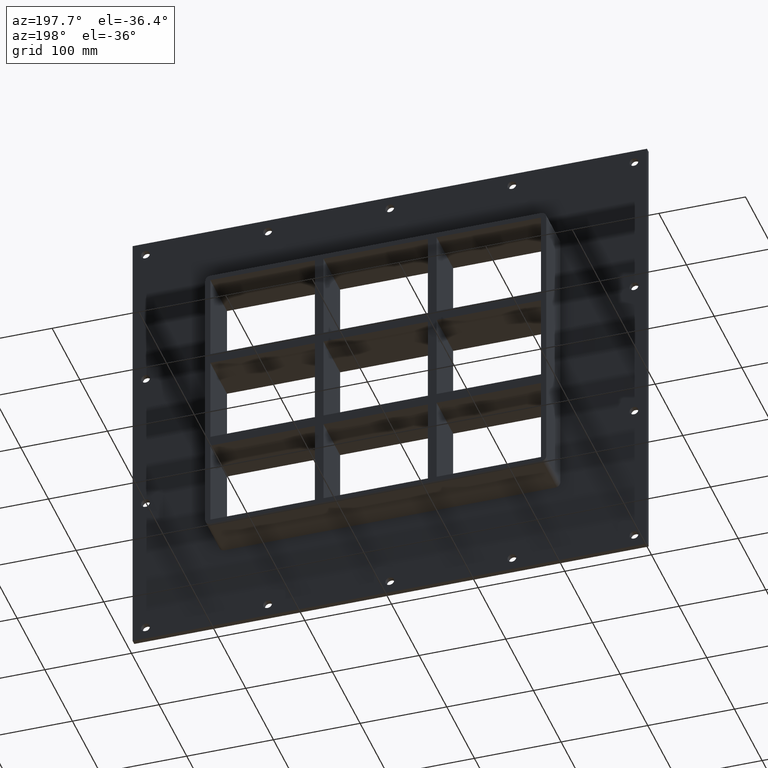
[diagram: clean part render]
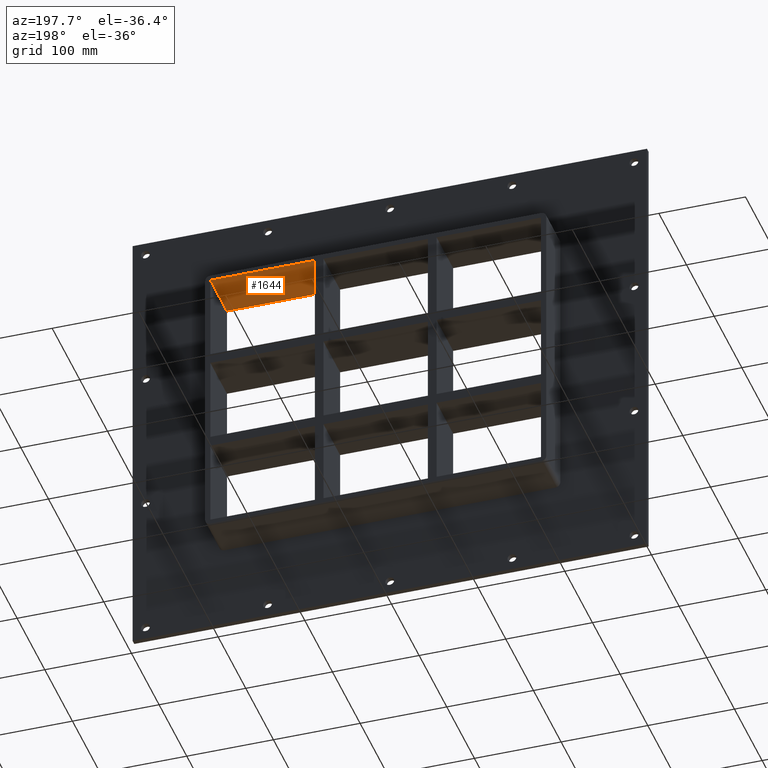
[diagram: same view with one face highlighted and labeled with its STEP entity id]
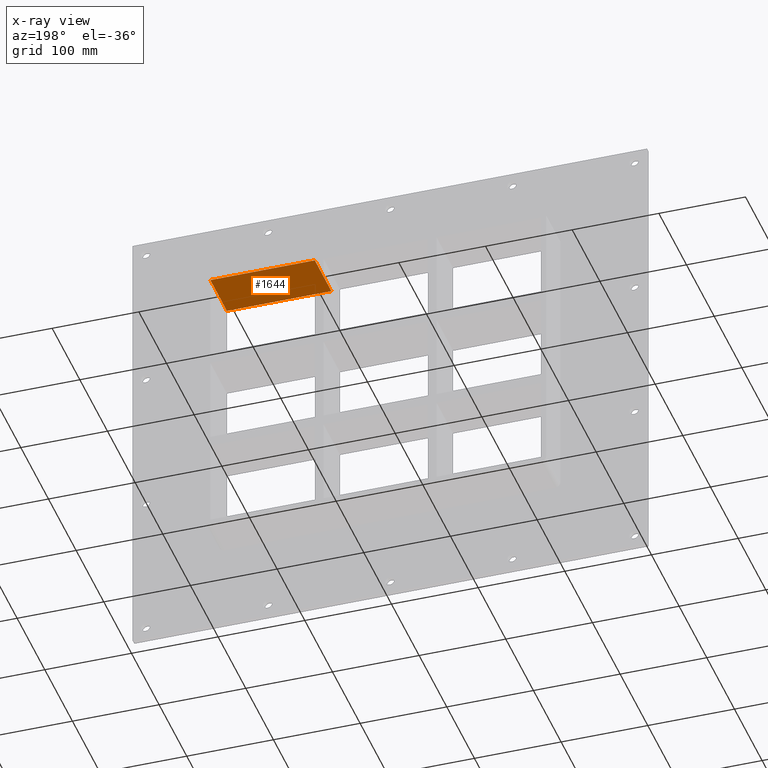
[diagram: x-ray of the same camera — body ghosted, the highlighted face saturated]
A machine part, auxiliary view. The second image highlights one B-rep face of the part: STEP entity #1644.
The next image is the same camera in x-ray: the body ghosted, the highlighted face saturated — about 0% of this face is hidden behind the body in this view.
In plain terms, the highlighted planar face has unit normal (0, 0, 1).
Its self-contained STEP definition (entity closure, byte-faithful):
#768=CARTESIAN_POINT('',(190.75000000000006,-3.0,163.5));
#769=VERTEX_POINT('',#768);
#776=CARTESIAN_POINT('',(190.75000000000006,57.0,163.5));
#777=VERTEX_POINT('',#776);
#778=CARTESIAN_POINT('',(190.75000000000006,-3.0,163.5));
#779=DIRECTION('',(0.0,1.0,0.0));
#780=VECTOR('',#779,60.0);
#781=LINE('',#778,#780);
#782=EDGE_CURVE('',#769,#777,#781,.T.);
#830=CARTESIAN_POINT('',(70.250000000003638,57.0,163.5));
#831=VERTEX_POINT('',#830);
#838=CARTESIAN_POINT('',(70.250000000003638,-3.0,163.5));
#839=VERTEX_POINT('',#838);
#840=CARTESIAN_POINT('',(70.250000000003638,-3.0,163.5));
#841=DIRECTION('',(0.0,1.0,0.0));
#842=VECTOR('',#841,60.000000000000007);
#843=LINE('',#840,#842);
#844=EDGE_CURVE('',#839,#831,#843,.T.);
#1042=CARTESIAN_POINT('',(190.75000000000006,57.0,163.5));
#1043=DIRECTION('',(-1.0,0.0,0.0));
#1044=VECTOR('',#1043,120.4999999999964);
#1045=LINE('',#1042,#1044);
#1046=EDGE_CURVE('',#777,#831,#1045,.T.);
#1524=CARTESIAN_POINT('',(70.250000000003652,-3.0,163.5));
#1525=DIRECTION('',(1.0,0.0,0.0));
#1526=VECTOR('',#1525,120.4999999999964);
#1527=LINE('',#1524,#1526);
#1528=EDGE_CURVE('',#839,#769,#1527,.T.);
#1633=CARTESIAN_POINT('',(-190.75000000000003,0.0,163.5));
#1634=DIRECTION('',(0.0,0.0,1.0));
#1635=DIRECTION('',(1.0,0.0,0.0));
#1636=AXIS2_PLACEMENT_3D('',#1633,#1634,#1635);
#1637=PLANE('',#1636);
#1638=ORIENTED_EDGE('',*,*,#844,.T.);
#1639=ORIENTED_EDGE('',*,*,#1046,.F.);
#1640=ORIENTED_EDGE('',*,*,#782,.F.);
#1641=ORIENTED_EDGE('',*,*,#1528,.F.);
#1642=EDGE_LOOP('',(#1638,#1639,#1640,#1641));
#1643=FACE_OUTER_BOUND('',#1642,.T.);
#1644=ADVANCED_FACE('',(#1643),#1637,.F.);